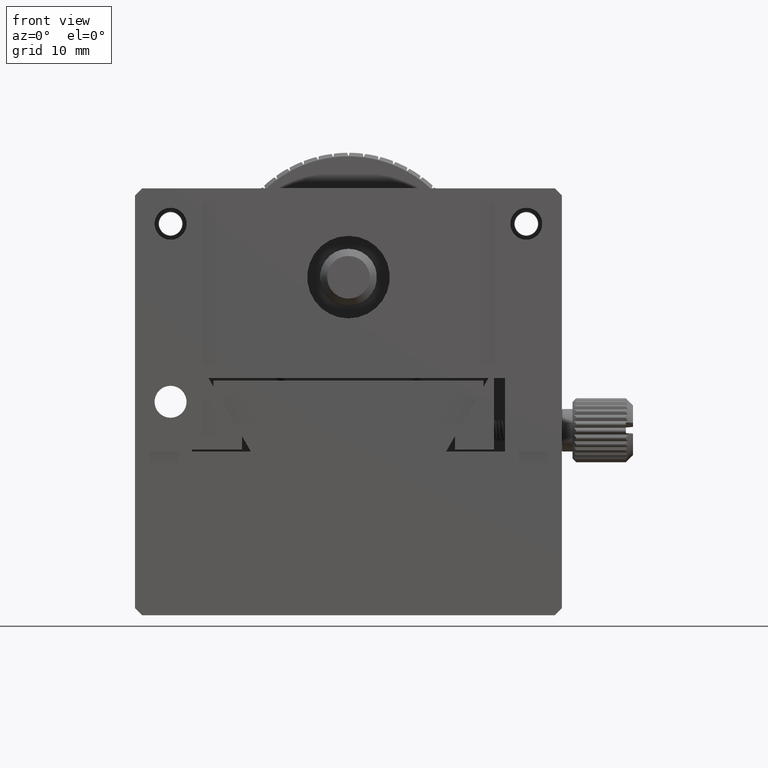
[diagram: clean part render]
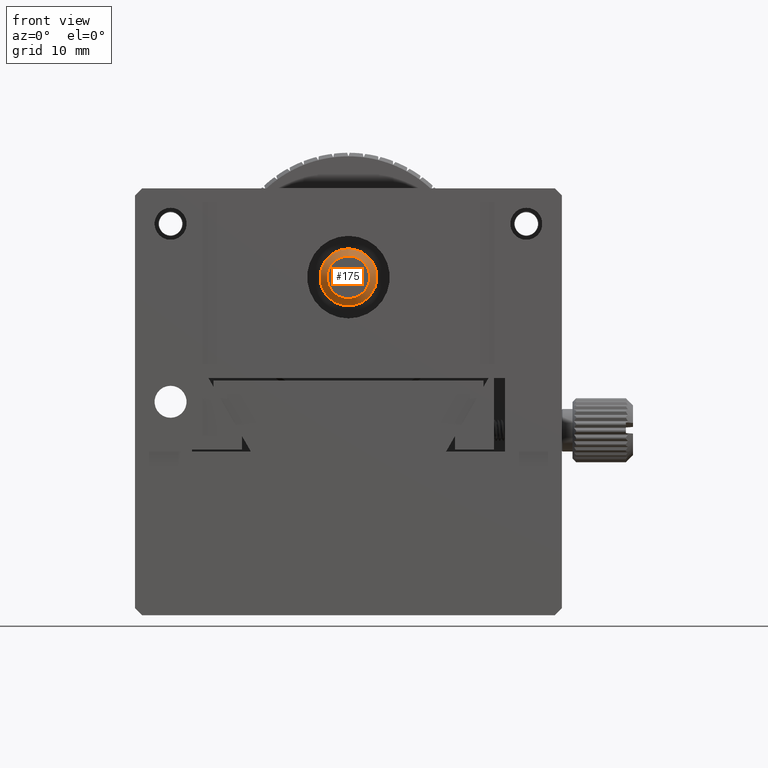
[diagram: same view with one face highlighted and labeled with its STEP entity id]
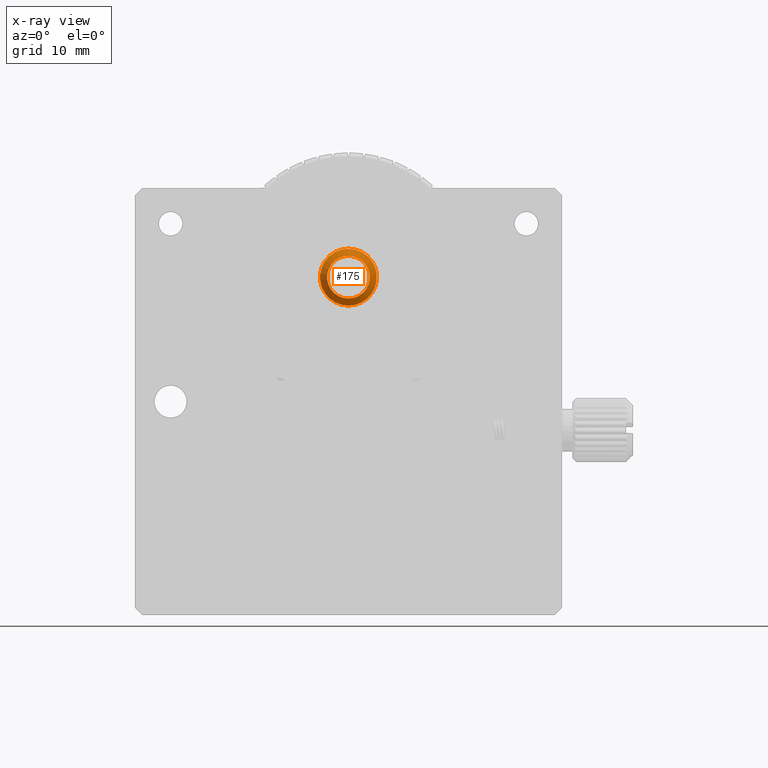
[diagram: x-ray of the same camera — body ghosted, the highlighted face saturated]
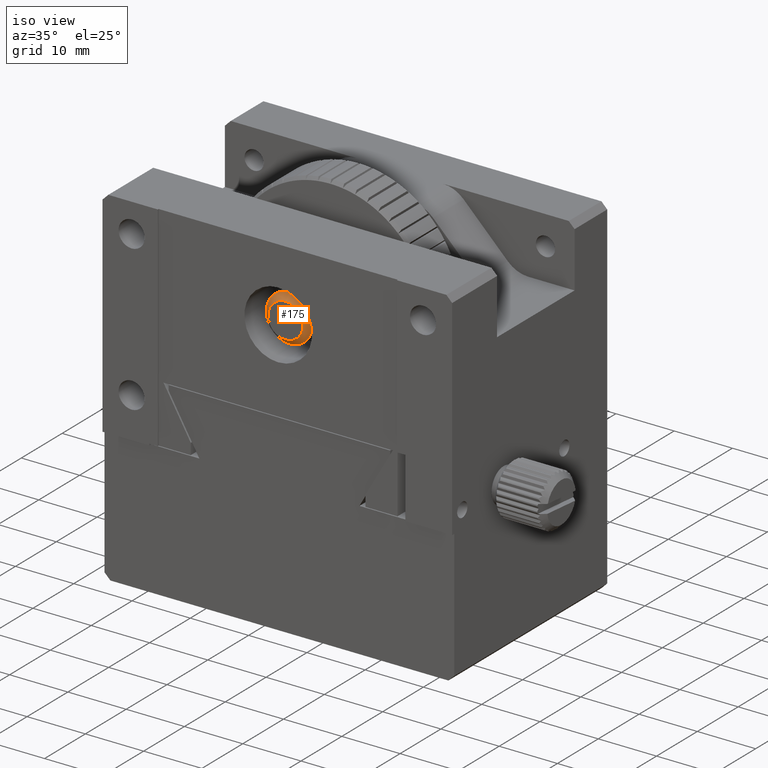
[diagram: same view with one face highlighted and labeled with its STEP entity id]
A machine part, front view. The second image highlights one B-rep face of the part: STEP entity #175.
The next image is the same camera in x-ray: the body ghosted, the highlighted face saturated — about 0% of this face is hidden behind the body in this view.
A second angle (iso view) of the same face is appended — the face is thin or edge-on in the first view.
In plain terms, the highlighted conical surface has half-angle 45 deg.
Its self-contained STEP definition (entity closure, byte-faithful):
#175 = ADVANCED_FACE ( 'NONE', ( #10158, #15948 ), #1279, .T. ) ;
#557 = EDGE_LOOP ( 'NONE', ( #2629 ) ) ;
#1279 = CONICAL_SURFACE ( 'NONE', #2595, 4.000000000019099389, 0.7853981633690265696 ) ;
#2060 = DIRECTION ( 'NONE',  ( 0.000000000000000000, 1.000000000000000000, 0.000000000000000000 ) ) ;
#2595 = AXIS2_PLACEMENT_3D ( 'NONE', #26638, #8140, #26098 ) ;
#2629 = ORIENTED_EDGE ( 'NONE', *, *, #23768, .F. ) ;
#4435 = DIRECTION ( 'NONE',  ( -0.000000000000000000, 1.000000000000000000, 0.000000000000000000 ) ) ;
#6196 = CARTESIAN_POINT ( 'NONE',  ( 34.52212796204036493, 12.59151725215862427, 86.30549511017599684 ) ) ;
#8140 = DIRECTION ( 'NONE',  ( -0.000000000000000000, 1.000000000000000000, 0.000000000000000000 ) ) ;
#9746 = AXIS2_PLACEMENT_3D ( 'NONE', #20549, #2060, #14067 ) ;
#10132 = AXIS2_PLACEMENT_3D ( 'NONE', #22770, #4435, #14254 ) ;
#10158 = FACE_OUTER_BOUND ( 'NONE', #557, .T. ) ;
#12652 = VERTEX_POINT ( 'NONE', #16834 ) ;
#14067 = DIRECTION ( 'NONE',  ( 0.000000000000000000, 0.000000000000000000, -1.000000000000000000 ) ) ;
#14254 = DIRECTION ( 'NONE',  ( 0.000000000000000000, 0.000000000000000000, 1.000000000000000000 ) ) ;
#15948 = FACE_BOUND ( 'NONE', #26120, .T. ) ;
#16834 = CARTESIAN_POINT ( 'NONE',  ( 34.52212796204036493, 13.59151725221546059, 79.30549511013325059 ) ) ;
#18573 = VERTEX_POINT ( 'NONE', #6196 ) ;
#20549 = CARTESIAN_POINT ( 'NONE',  ( 34.52212796204036493, 13.59151725221546059, 83.30549511013325059 ) ) ;
#21913 = EDGE_CURVE ( 'NONE', #18573, #18573, #26093, .T. ) ;
#22770 = CARTESIAN_POINT ( 'NONE',  ( 34.52212796204036493, 12.59151725215862427, 83.30549511013325059 ) ) ;
#22813 = ORIENTED_EDGE ( 'NONE', *, *, #21913, .T. ) ;
#23768 = EDGE_CURVE ( 'NONE', #12652, #12652, #25694, .T. ) ;
#25694 = CIRCLE ( 'NONE', #9746, 4.000000000000003553 ) ;
#26093 = CIRCLE ( 'NONE', #10132, 3.000000000042746251 ) ;
#26098 = DIRECTION ( 'NONE',  ( 0.000000000000000000, 0.000000000000000000, 1.000000000000000000 ) ) ;
#26120 = EDGE_LOOP ( 'NONE', ( #22813 ) ) ;
#26638 = CARTESIAN_POINT ( 'NONE',  ( 34.52212796204036493, 13.59151725219182083, 83.30549511013325059 ) ) ;